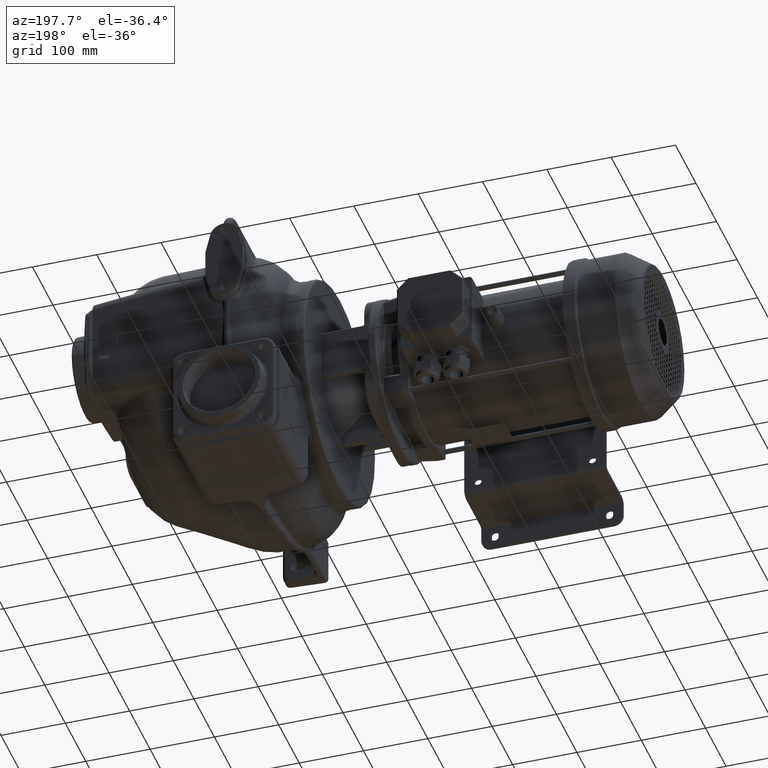
[diagram: clean part render]
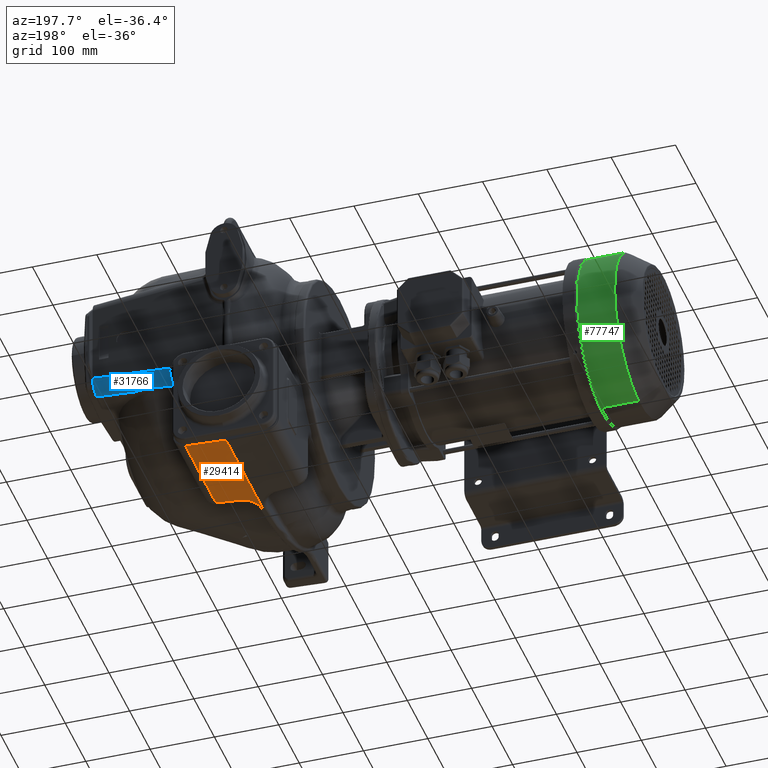
[diagram: same view with three faces highlighted in distinct colors, each labeled with its STEP entity id]
A machine part, auxiliary view with three faces highlighted in distinct colors.
Their STEP definitions:

[orange] entity #29414 — the highlighted planar face has unit normal (0.0523, 0, -0.9986).
#4376=CARTESIAN_POINT('',(2.804671912073E1,3.309861380182E2,-2.629725906953E2));
#4395=DIRECTION('',(-9.986295347546E-1,0.E0,-5.233595624294E-2));
#4396=VECTOR('',#4395,6.313324103753E1);
#4397=CARTESIAN_POINT('',(2.804671912486E1,4.8E2,-2.629725906951E2));
#4398=LINE('',#4397,#4396);
#4399=DIRECTION('',(0.E0,1.E0,-3.437737743557E-10));
#4400=VECTOR('',#4399,1.791359082960E2);
#4401=CARTESIAN_POINT('',(-3.5E1,3.008640917040E2,-2.662767291739E2));
#4402=LINE('',#4401,#4400);
#4403=CARTESIAN_POINT('',(-3.363652773616E1,3.008613134075E2,
-2.662052726820E2));
#4404=CARTESIAN_POINT('',(-3.378802651899E1,3.008610713877E2,
-2.662132123968E2));
#4405=CARTESIAN_POINT('',(-3.409102076703E1,3.008612482068E2,
-2.662290916443E2));
#4406=CARTESIAN_POINT('',(-3.454552933331E1,3.008575483592E2,
-2.662529114659E2));
#4407=CARTESIAN_POINT('',(-3.484849221281E1,3.008643337144E2,
-2.662687889873E2));
#4408=CARTESIAN_POINT('',(-3.5E1,3.008640917040E2,-2.662767291739E2));
#4410=CARTESIAN_POINT('',(-1.004671912486E1,3.289897455143E2,
-2.649689831990E2));
#4411=CARTESIAN_POINT('',(-1.168657387286E1,3.289038199035E2,
-2.650549500828E2));
#4412=CARTESIAN_POINT('',(-1.502468549369E1,3.282987764161E2,
-2.652298553998E2));
#4413=CARTESIAN_POINT('',(-2.041318657150E1,3.257763870297E2,
-2.655122699966E2));
#4414=CARTESIAN_POINT('',(-2.551984219371E1,3.215576624751E2,
-2.657798941408E2));
#4415=CARTESIAN_POINT('',(-2.969862327095E1,3.158872604036E2,
-2.659988969017E2));
#4416=CARTESIAN_POINT('',(-3.255307569023E1,3.091611496691E2,
-2.661484882525E2));
#4417=CARTESIAN_POINT('',(-3.346288993776E1,3.037696379496E2,
-2.661961792778E2));
#4418=CARTESIAN_POINT('',(-3.363652773616E1,3.008613134075E2,
-2.662052726820E2));
#4420=DIRECTION('',(9.972646886341E-1,5.226442769207E-2,5.226442768870E-2));
#4421=VECTOR('',#4420,3.819792145430E1);
#4422=CARTESIAN_POINT('',(-1.004671912486E1,3.289897455143E2,
-2.649689831990E2));
#4423=LINE('',#4422,#4421);
#4424=DIRECTION('',(-2.771407241396E-11,-1.E0,-1.453377712512E-12));
#4425=VECTOR('',#4424,1.490138619818E2);
#4426=CARTESIAN_POINT('',(2.804671912486E1,4.8E2,-2.629725906951E2));
#4427=LINE('',#4426,#4425);
#4433=CARTESIAN_POINT('',(-3.5E1,3.008640917040E2,-2.662767291739E2));
#18115=CARTESIAN_POINT('',(-3.5E1,4.8E2,-2.662767292355E2));
#18117=VERTEX_POINT('',#18115);
#18131=CARTESIAN_POINT('',(2.804671912486E1,4.8E2,-2.629725906951E2));
#18132=VERTEX_POINT('',#18131);
#18260=VERTEX_POINT('',#4376);
#18264=CARTESIAN_POINT('',(-1.004671912486E1,3.289897455143E2,
-2.649689831990E2));
#18265=VERTEX_POINT('',#18264);
#18266=VERTEX_POINT('',#4418);
#18834=VERTEX_POINT('',#4433);
#29398=CARTESIAN_POINT('',(2.804671912486E1,4.84E2,-2.629725906951E2));
#29399=DIRECTION('',(5.233595624294E-2,0.E0,-9.986295347546E-1));
#29400=DIRECTION('',(-9.986295347546E-1,0.E0,-5.233595624294E-2));
#29401=AXIS2_PLACEMENT_3D('',#29398,#29399,#29400);
#29402=PLANE('',#29401);
#29403=ORIENTED_EDGE('',*,*,#26487,.T.);
#29404=ORIENTED_EDGE('',*,*,#26555,.F.);
#29406=ORIENTED_EDGE('',*,*,#29405,.F.);
#29408=ORIENTED_EDGE('',*,*,#29407,.F.);
#29410=ORIENTED_EDGE('',*,*,#29409,.T.);
#29411=ORIENTED_EDGE('',*,*,#29388,.F.);
#29412=EDGE_LOOP('',(#29403,#29404,#29406,#29408,#29410,#29411));
#29413=FACE_OUTER_BOUND('',#29412,.F.);
#29414=ADVANCED_FACE('',(#29413),#29402,.T.);
#4409=B_SPLINE_CURVE_WITH_KNOTS('',3,(#4403,#4404,#4405,#4406,#4407,#4408),
.UNSPECIFIED.,.F.,.F.,(4,1,1,4),(0.E0,3.333333333333E-1,6.666666666667E-1,1.E0),
.UNSPECIFIED.);
#4419=B_SPLINE_CURVE_WITH_KNOTS('',3,(#4410,#4411,#4412,#4413,#4414,#4415,#4416,
#4417,#4418),.UNSPECIFIED.,.F.,.F.,(4,1,1,1,1,1,4),(0.E0,1.666666666667E-1,
3.333333333333E-1,5.E-1,6.666666666667E-1,8.333333333333E-1,1.E0),
.UNSPECIFIED.);
#26487=EDGE_CURVE('',#18132,#18117,#4398,.T.);
#26555=EDGE_CURVE('',#18834,#18117,#4402,.T.);
#29388=EDGE_CURVE('',#18132,#18260,#4427,.T.);
#29405=EDGE_CURVE('',#18266,#18834,#4409,.T.);
#29407=EDGE_CURVE('',#18265,#18266,#4419,.T.);
#29409=EDGE_CURVE('',#18265,#18260,#4423,.T.);

[blue] entity #31766 — the highlighted cylindrical surface (edge-blend (fillet) strip) has radius 20 mm, axis along (-0.9959, 0.0261, -0.0871).
#5256=CARTESIAN_POINT('',(5.300303384226E1,4.751946029648E2,-1.106427584969E2));
#5265=DIRECTION('',(9.958559188280E-1,-2.607740479983E-2,8.712610340222E-2));
#5266=VECTOR('',#5265,1.225046353104E2);
#5267=CARTESIAN_POINT('',(5.300303384226E1,4.751946029648E2,-1.106427584969E2));
#5268=LINE('',#5267,#5266);
#5378=CARTESIAN_POINT('',(1.75E2,4.72E2,-9.996940697359E1));
#5379=CARTESIAN_POINT('',(1.75E2,4.72E2,-1.003930401753E2));
#5380=CARTESIAN_POINT('',(1.75E2,4.719866510886E2,-1.008162522272E2));
#5381=CARTESIAN_POINT('',(1.75E2,4.719599469434E2,-1.012390429298E2));
#5383=CARTESIAN_POINT('',(5.411262850055E1,4.741995589845E2,-1.167064325151E2));
#5384=CARTESIAN_POINT('',(5.413277978856E1,4.744195389852E2,-1.160191627092E2));
#5385=CARTESIAN_POINT('',(5.407599175354E1,4.747824384646E2,-1.146449837392E2));
#5386=CARTESIAN_POINT('',(5.371175521443E1,4.751055724217E2,-1.126404418484E2));
#5387=CARTESIAN_POINT('',(5.327253667807E1,4.751875448284E2,-1.113028799692E2));
#5388=CARTESIAN_POINT('',(5.300303384226E1,4.751946029648E2,-1.106427584969E2));
#5390=CARTESIAN_POINT('',(5.382563087827E1,4.579854676019E2,-1.304074582134E2));
#5391=CARTESIAN_POINT('',(5.381802561808E1,4.594577765713E2,-1.302012336518E2));
#5392=CARTESIAN_POINT('',(5.381403935174E1,4.623557695771E2,-1.294567740682E2));
#5393=CARTESIAN_POINT('',(5.384202909030E1,4.663460664191E2,-1.273995313505E2));
#5394=CARTESIAN_POINT('',(5.390269853717E1,4.697861141206E2,-1.244994817613E2));
#5395=CARTESIAN_POINT('',(5.399323648859E1,4.725039347488E2,-1.208947718435E2));
#5396=CARTESIAN_POINT('',(5.407061292969E1,4.737410531710E2,-1.181389356171E2));
#5397=CARTESIAN_POINT('',(5.411262850055E1,4.741995589845E2,-1.167064325151E2));
#5399=CARTESIAN_POINT('',(5.431046876607E1,4.575578117571E2,-1.304189193420E2));
#5400=CARTESIAN_POINT('',(5.421182562894E1,4.575578425777E2,-1.304278536762E2));
#5401=CARTESIAN_POINT('',(5.404428329333E1,4.576032788059E2,-1.304377063908E2));
#5402=CARTESIAN_POINT('',(5.386499147520E1,4.577736422617E2,-1.304327919106E2));
#5403=CARTESIAN_POINT('',(5.382602688177E1,4.579087186632E2,-1.304182084227E2));
#5404=CARTESIAN_POINT('',(5.382563087827E1,4.579854676019E2,-1.304074582134E2));
#5406=CARTESIAN_POINT('',(8.737725278210E1,4.575411215736E2,-1.274061570095E2));
#5407=CARTESIAN_POINT('',(8.368914613846E1,4.575437303010E2,-1.277441493299E2));
#5408=CARTESIAN_POINT('',(7.632227935758E1,4.575484185370E2,-1.284179806615E2));
#5409=CARTESIAN_POINT('',(6.530001870404E1,4.575539292814E2,-1.294222489239E2));
#5410=CARTESIAN_POINT('',(5.797053650193E1,4.575566622805E2,-1.300874183017E2));
#5411=CARTESIAN_POINT('',(5.431046876607E1,4.575578117571E2,-1.304189193420E2));
#5413=CARTESIAN_POINT('',(1.150407887739E2,4.536088763387E2,-1.252457515829E2));
#5414=CARTESIAN_POINT('',(1.118120955172E2,4.545144702760E2,-1.255282223002E2));
#5415=CARTESIAN_POINT('',(1.054477522662E2,4.559952470327E2,-1.259880387271E2));
#5416=CARTESIAN_POINT('',(9.629861586914E1,4.572656103657E2,-1.266344102705E2));
#5417=CARTESIAN_POINT('',(9.032209122674E1,4.575390481526E2,-1.271362731968E2));
#5418=CARTESIAN_POINT('',(8.737725278210E1,4.575411215736E2,-1.274061570095E2));
#5420=CARTESIAN_POINT('',(1.75E2,4.520387892191E2,-1.2E2));
#5421=CARTESIAN_POINT('',(1.75E2,4.551666665119E2,-1.2E2));
#5422=CARTESIAN_POINT('',(1.75E2,4.601989090376E2,-1.186967708334E2));
#5423=CARTESIAN_POINT('',(1.75E2,4.659750420562E2,-1.148542278079E2));
#5424=CARTESIAN_POINT('',(1.75E2,4.701552121259E2,-1.093117379393E2));
#5425=CARTESIAN_POINT('',(1.75E2,4.717627780504E2,-1.043606996673E2));
#5426=CARTESIAN_POINT('',(1.75E2,4.719599469434E2,-1.012390429298E2));
#8513=DIRECTION('',(-9.958559183882E-1,2.607740359628E-2,-8.712610878952E-2));
#8514=VECTOR('',#8513,6.020872107996E1);
#8515=CARTESIAN_POINT('',(1.75E2,4.520387892191E2,-1.2E2));
#8516=LINE('',#8515,#8514);
#18051=CARTESIAN_POINT('',(1.75E2,4.520387892191E2,-1.2E2));
#18053=VERTEX_POINT('',#18051);
#18664=CARTESIAN_POINT('',(1.150407887739E2,4.536088763387E2,
-1.252457515829E2));
#18665=VERTEX_POINT('',#18664);
#18717=VERTEX_POINT('',#5418);
#18718=VERTEX_POINT('',#5411);
#18719=VERTEX_POINT('',#5256);
#18721=VERTEX_POINT('',#5383);
#18722=VERTEX_POINT('',#5390);
#19285=CARTESIAN_POINT('',(1.75E2,4.719599469434E2,-1.012390429298E2));
#19287=VERTEX_POINT('',#19285);
#19329=CARTESIAN_POINT('',(1.75E2,4.72E2,-9.996940697359E1));
#19331=VERTEX_POINT('',#19329);
#31745=CARTESIAN_POINT('',(6.758154012276E2,4.388788313330E2,
-5.610793312253E1));
#31746=DIRECTION('',(-9.958559188232E-1,2.607740498452E-2,-8.712610340222E-2));
#31747=DIRECTION('',(2.617694830787E-2,9.996573249756E-1,0.E0));
#31748=AXIS2_PLACEMENT_3D('',#31745,#31746,#31747);
#31749=CYLINDRICAL_SURFACE('',#31748,2.E1);
#31750=ORIENTED_EDGE('',*,*,#31729,.F.);
#31751=ORIENTED_EDGE('',*,*,#31680,.F.);
#31752=ORIENTED_EDGE('',*,*,#29268,.F.);
#31753=ORIENTED_EDGE('',*,*,#29360,.F.);
#31755=ORIENTED_EDGE('',*,*,#31754,.F.);
#31757=ORIENTED_EDGE('',*,*,#31756,.F.);
#31759=ORIENTED_EDGE('',*,*,#31758,.F.);
#31761=ORIENTED_EDGE('',*,*,#31760,.F.);
#31763=ORIENTED_EDGE('',*,*,#31762,.T.);
#31764=EDGE_LOOP('',(#31750,#31751,#31752,#31753,#31755,#31757,#31759,#31761,
#31763));
#31765=FACE_OUTER_BOUND('',#31764,.F.);
#31766=ADVANCED_FACE('',(#31765),#31749,.T.);
#5382=B_SPLINE_CURVE_WITH_KNOTS('',3,(#5378,#5379,#5380,#5381),.UNSPECIFIED.,
.F.,.F.,(4,4),(0.E0,1.E0),.UNSPECIFIED.);
#5389=B_SPLINE_CURVE_WITH_KNOTS('',3,(#5383,#5384,#5385,#5386,#5387,#5388),
.UNSPECIFIED.,.F.,.F.,(4,1,1,4),(0.E0,3.333333333333E-1,6.666666666667E-1,1.E0),
.UNSPECIFIED.);
#5398=B_SPLINE_CURVE_WITH_KNOTS('',3,(#5390,#5391,#5392,#5393,#5394,#5395,#5396,
#5397),.UNSPECIFIED.,.F.,.F.,(4,1,1,1,1,4),(0.E0,2.E-1,4.E-1,6.E-1,8.E-1,1.E0),
.UNSPECIFIED.);
#5405=B_SPLINE_CURVE_WITH_KNOTS('',3,(#5399,#5400,#5401,#5402,#5403,#5404),
.UNSPECIFIED.,.F.,.F.,(4,1,1,4),(0.E0,3.333333333333E-1,6.666666666667E-1,1.E0),
.UNSPECIFIED.);
#5412=B_SPLINE_CURVE_WITH_KNOTS('',3,(#5406,#5407,#5408,#5409,#5410,#5411),
.UNSPECIFIED.,.F.,.F.,(4,1,1,4),(0.E0,3.333333333333E-1,6.666666666667E-1,1.E0),
.UNSPECIFIED.);
#5419=B_SPLINE_CURVE_WITH_KNOTS('',3,(#5413,#5414,#5415,#5416,#5417,#5418),
.UNSPECIFIED.,.F.,.F.,(4,1,1,4),(0.E0,3.333333333333E-1,6.666666666667E-1,1.E0),
.UNSPECIFIED.);
#5427=B_SPLINE_CURVE_WITH_KNOTS('',3,(#5420,#5421,#5422,#5423,#5424,#5425,
#5426),.UNSPECIFIED.,.F.,.F.,(4,1,1,1,4),(0.E0,2.5E-1,5.E-1,7.5E-1,1.E0),
.UNSPECIFIED.);
#29268=EDGE_CURVE('',#18721,#18719,#5389,.T.);
#29360=EDGE_CURVE('',#18722,#18721,#5398,.T.);
#31680=EDGE_CURVE('',#18719,#19331,#5268,.T.);
#31729=EDGE_CURVE('',#19331,#19287,#5382,.T.);
#31754=EDGE_CURVE('',#18718,#18722,#5405,.T.);
#31756=EDGE_CURVE('',#18717,#18718,#5412,.T.);
#31758=EDGE_CURVE('',#18665,#18717,#5419,.T.);
#31760=EDGE_CURVE('',#18053,#18665,#8516,.T.);
#31762=EDGE_CURVE('',#18053,#19287,#5427,.T.);

[green] entity #77747 — the highlighted cylindrical surface (partial cylindrical patch) has radius 126.5 mm, axis along (-1, 0, 0).
#61340=CARTESIAN_POINT('',(-5.968801508043E2,2.2E2,-1.9E1));
#61341=DIRECTION('',(-1.E0,0.E0,0.E0));
#61342=DIRECTION('',(0.E0,-8.715574274766E-2,9.961946980917E-1));
#61343=AXIS2_PLACEMENT_3D('',#61340,#61341,#61342);
#61370=CARTESIAN_POINT('',(-5.389142135624E2,2.2E2,-1.9E1));
#61371=DIRECTION('',(1.E0,0.E0,0.E0));
#61372=DIRECTION('',(0.E0,8.715574274766E-2,-9.961946980917E-1));
#61373=AXIS2_PLACEMENT_3D('',#61370,#61371,#61372);
#61385=DIRECTION('',(-1.E0,0.E0,0.E0));
#61386=VECTOR('',#61385,5.796593724197E1);
#61387=CARTESIAN_POINT('',(-5.389142135624E2,2.089747985424E2,
1.070186293086E2));
#61388=LINE('',#61387,#61386);
#61389=DIRECTION('',(-1.E0,0.E0,0.E0));
#61390=VECTOR('',#61389,5.796593724197E1);
#61391=CARTESIAN_POINT('',(-5.389142135624E2,2.310252014576E2,
-1.450186293086E2));
#61392=LINE('',#61391,#61390);
#71611=CARTESIAN_POINT('',(-5.389142135624E2,2.310252014576E2,
-1.450186293086E2));
#71612=CARTESIAN_POINT('',(-5.968801508043E2,2.310252014576E2,
-1.450186293086E2));
#71613=VERTEX_POINT('',#71611);
#71614=VERTEX_POINT('',#71612);
#71615=CARTESIAN_POINT('',(-5.389142135624E2,2.089747985424E2,
1.070186293086E2));
#71616=CARTESIAN_POINT('',(-5.968801508043E2,2.089747985424E2,
1.070186293086E2));
#71617=VERTEX_POINT('',#71615);
#71618=VERTEX_POINT('',#71616);
#77736=CARTESIAN_POINT('',(-5.165E2,2.2E2,-1.9E1));
#77737=DIRECTION('',(-1.E0,0.E0,0.E0));
#77738=DIRECTION('',(0.E0,8.715574274766E-2,-9.961946980917E-1));
#77739=AXIS2_PLACEMENT_3D('',#77736,#77737,#77738);
#77740=CYLINDRICAL_SURFACE('',#77739,1.265E2);
#77741=ORIENTED_EDGE('',*,*,#77728,.T.);
#77742=ORIENTED_EDGE('',*,*,#77702,.T.);
#77743=ORIENTED_EDGE('',*,*,#77661,.T.);
#77744=ORIENTED_EDGE('',*,*,#77699,.F.);
#77745=EDGE_LOOP('',(#77741,#77742,#77743,#77744));
#77746=FACE_OUTER_BOUND('',#77745,.F.);
#77747=ADVANCED_FACE('',(#77746),#77740,.T.);
#61344=CIRCLE('',#61343,1.265E2);
#61374=CIRCLE('',#61373,1.265E2);
#77661=EDGE_CURVE('',#71618,#71614,#61344,.T.);
#77699=EDGE_CURVE('',#71613,#71614,#61392,.T.);
#77702=EDGE_CURVE('',#71617,#71618,#61388,.T.);
#77728=EDGE_CURVE('',#71613,#71617,#61374,.T.);